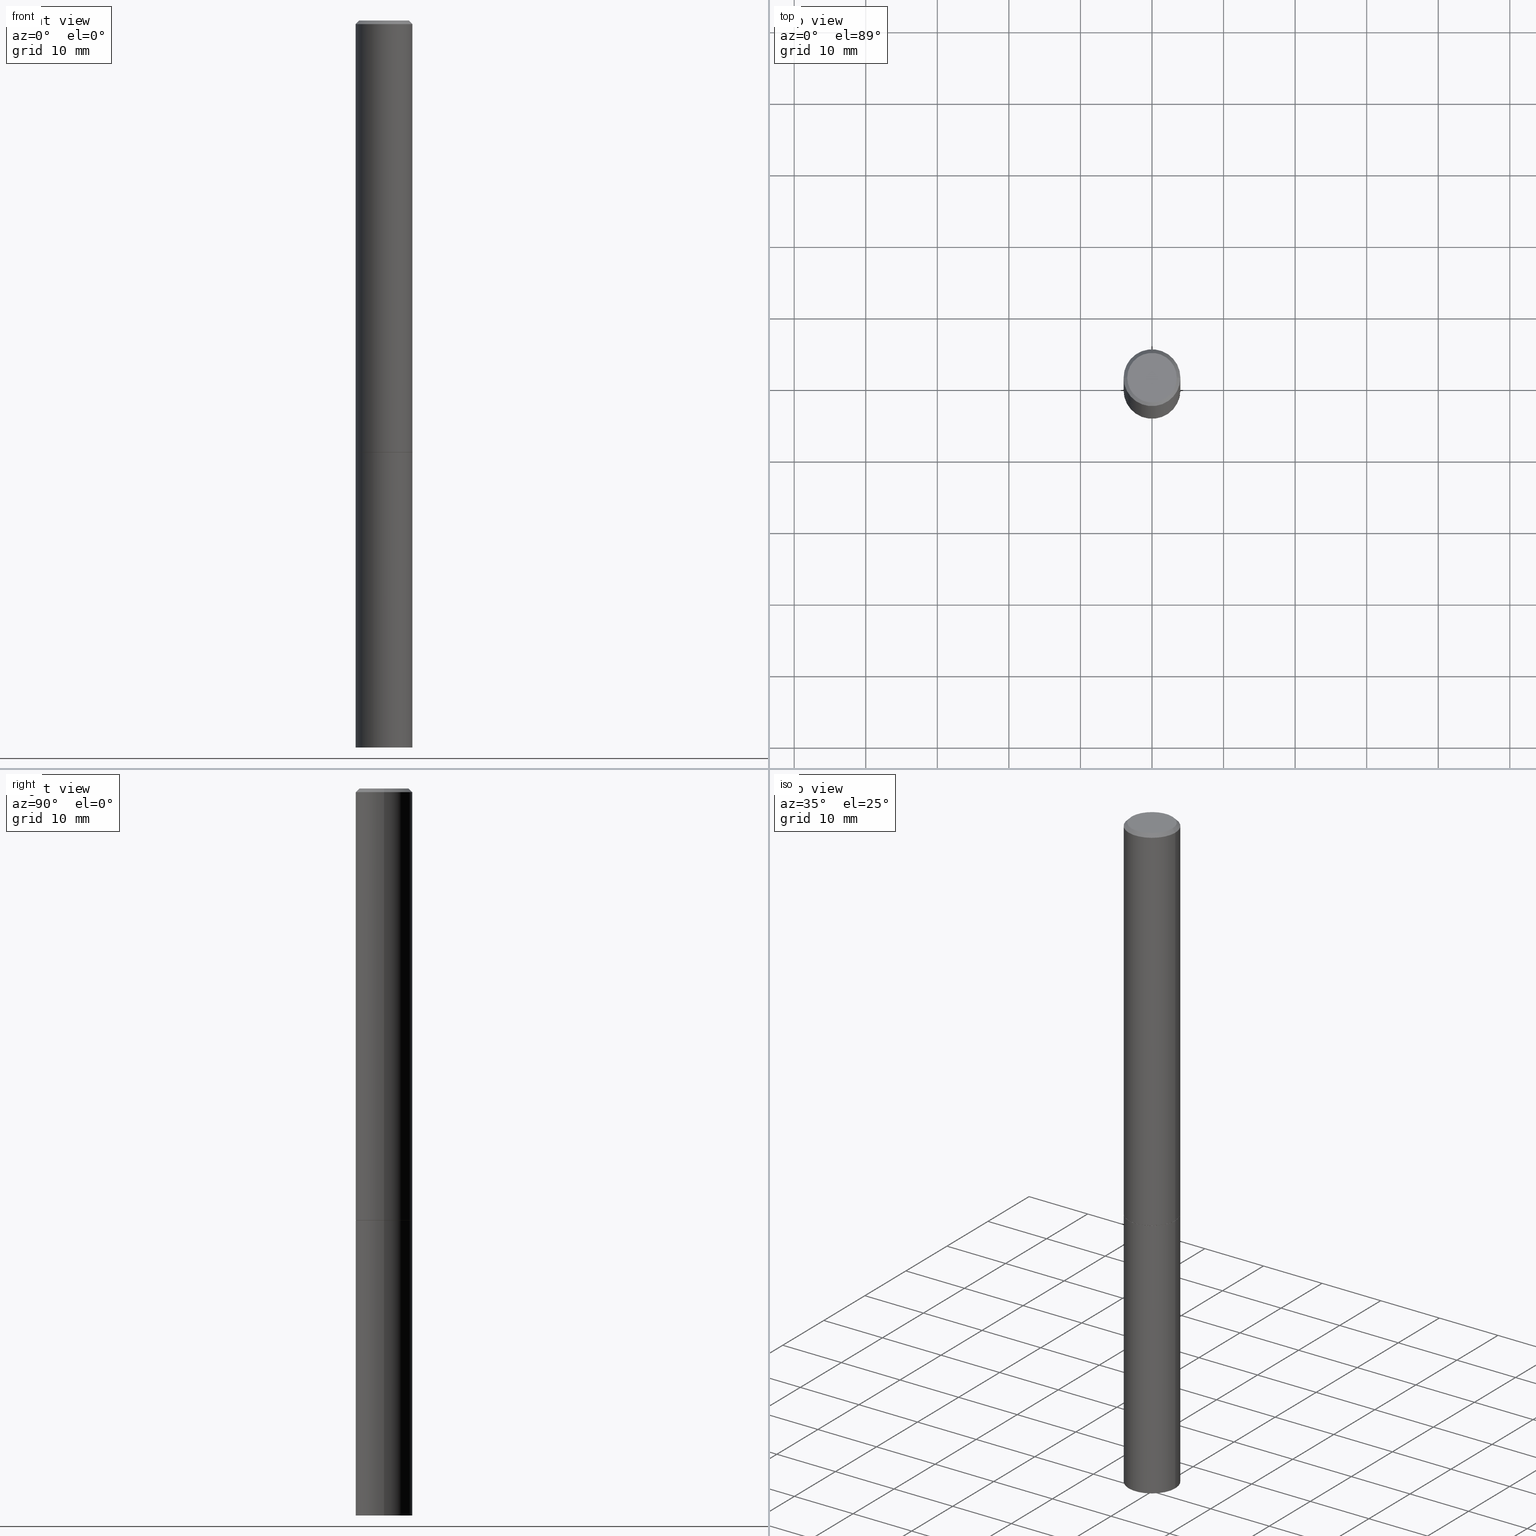
[diagram: canonical four-view strip — front | top / right | iso, engineering-drawing reading convention]
A machine part, canonical four-view strip (front | top / right | iso — engineering-drawing reading convention). The complete STEP part file that produces these views, byte-faithful:
ISO-10303-21;
HEADER;
FILE_DESCRIPTION (( 'STEP AP203' ),
    '1' );
FILE_NAME ('31873.STEP',
    '2023-03-21T20:33:45',
    ( '' ),
    ( '' ),
    'SwSTEP 2.0',
    'SolidWorks 2022',
    '' );
FILE_SCHEMA (( 'CONFIG_CONTROL_DESIGN' ));
ENDSEC;

DATA;
#1 = CALENDAR_DATE ( 2023, 21, 3 ) ;
#2 = ORIENTED_EDGE ( 'NONE', *, *, #159, .T. ) ;
#3 = PRODUCT ( '31873', '31873', '', ( #178 ) ) ;
#4 = APPROVAL ( #300, 'UNSPECIFIED' ) ;
#5 = DIRECTION ( 'NONE',  ( -2.445468806185136597E-29, 3.491481338843145583E-15, 1.000000000000000000 ) ) ;
#6 = CARTESIAN_POINT ( 'NONE',  ( 0.000000000000000000, 0.000000000000000000, 0.000000000000000000 ) ) ;
#7 = DIRECTION ( 'NONE',  ( 0.7071067811865232589, -2.468850131082003836E-15, 0.7071067811865715536 ) ) ;
#8 = DIRECTION ( 'NONE',  ( -2.445468806185136597E-29, 3.491481338843145583E-15, 1.000000000000000000 ) ) ;
#9 = DATE_AND_TIME ( #1, #291 ) ;
#10 = ADVANCED_FACE ( 'NONE', ( #248 ), #34, .T. ) ;
#11 = CLOSED_SHELL ( 'NONE', ( #122, #368, #10, #227, #57, #238, #106, #141 ) ) ;
#12 = DIRECTION ( 'NONE',  ( -2.445468806185136597E-29, 3.491481338843145583E-15, 1.000000000000000000 ) ) ;
#13 = CALENDAR_DATE ( 2023, 21, 3 ) ;
#14 =( NAMED_UNIT ( * ) SI_UNIT ( $, .STERADIAN. ) SOLID_ANGLE_UNIT ( ) );
#15 = APPROVAL_ROLE ( '' ) ;
#16 = DIRECTION ( 'NONE',  ( 1.000000000000000000, -6.982962677686266711E-15, 4.876176775795936353E-29 ) ) ;
#17 = APPLICATION_CONTEXT ( 'configuration controlled 3d designs of mechanical parts and assemblies' ) ;
#18 = AXIS2_PLACEMENT_3D ( 'NONE', #311, #191, #188 ) ;
#19 = COORDINATED_UNIVERSAL_TIME_OFFSET ( 5, 0, .BEHIND. ) ;
#20 = CYLINDRICAL_SURFACE ( 'NONE', #230, 0.1562500000000000000 ) ;
#21 = DIRECTION ( 'NONE',  ( 1.000000000000000000, -6.982962677686262766E-15, 0.000000000000000000 ) ) ;
#22 = EDGE_CURVE ( 'NONE', #262, #85, #371, .T. ) ;
#23 = LOCAL_TIME ( 16, 33, 45.00000000000000000, #74 ) ;
#24 = VERTEX_POINT ( 'NONE', #372 ) ;
#25 = APPLICATION_CONTEXT ( 'configuration controlled 3d designs of mechanical parts and assemblies' ) ;
#26 = ORIENTED_EDGE ( 'NONE', *, *, #97, .T. ) ;
#27 = CIRCLE ( 'NONE', #244, 0.1562500000000000000 ) ;
#28 = ORIENTED_EDGE ( 'NONE', *, *, #92, .F. ) ;
#29 = DATE_TIME_ROLE ( 'creation_date' ) ;
#30 = ORIENTED_EDGE ( 'NONE', *, *, #22, .T. ) ;
#31 = APPROVAL_ROLE ( '' ) ;
#32 = AXIS2_PLACEMENT_3D ( 'NONE', #104, #108, #278 ) ;
#33 = EDGE_LOOP ( 'NONE', ( #203, #119, #2, #90 ) ) ;
#34 = CONICAL_SURFACE ( 'NONE', #150, 0.1562499999999997224, 0.7853981633974472798 ) ;
#35 = LINE ( 'NONE', #331, #91 ) ;
#36 = CARTESIAN_POINT ( 'NONE',  ( -0.1562499999999998612, 1.110223024625155554E-15, -7.685836078523284153E-30 ) ) ;
#37 = LENGTH_MEASURE_WITH_UNIT ( LENGTH_MEASURE( 0.02539999999999999897 ), #222 );
#38 = DIRECTION ( 'NONE',  ( 0.000000000000000000, 0.000000000000000000, 1.000000000000000000 ) ) ;
#39 = EDGE_CURVE ( 'NONE', #55, #148, #35, .T. ) ;
#40 = CARTESIAN_POINT ( 'NONE',  ( -0.1362499999999997324, 9.863434782231830429E-16, -6.775751096333125871E-30 ) ) ;
#41 = AXIS2_PLACEMENT_3D ( 'NONE', #46, #166, #289 ) ;
#42 = AXIS2_PLACEMENT_3D ( 'NONE', #333, #253, #305 ) ;
#43 =( CONVERSION_BASED_UNIT ( 'INCH', #37 ) LENGTH_UNIT ( ) NAMED_UNIT ( #357 ) );
#44 = CARTESIAN_POINT ( 'NONE',  ( 0.1562499999999997224, -1.141782438928662935E-15, -0.02000000000000003511 ) ) ;
#45 = CARTESIAN_POINT ( 'NONE',  ( -2.914548546420694445E-19, -1.393733460796993625E-14, -3.991811284487025713 ) ) ;
#46 = CARTESIAN_POINT ( 'NONE',  ( 5.807988414689699417E-29, -8.292268179752470118E-15, -2.375000000000000000 ) ) ;
#47 = DIRECTION ( 'NONE',  ( -2.445468806185136597E-29, 3.491481338843145583E-15, 1.000000000000000000 ) ) ;
#48 = ORIENTED_EDGE ( 'NONE', *, *, #184, .F. ) ;
#49 = ADVANCED_FACE ( 'NONE', ( #183 ), #62, .F. ) ;
#50 = CONICAL_SURFACE ( 'NONE', #294, 0.1562499999999997224, 0.7853981633974472798 ) ;
#51 = ORIENTED_EDGE ( 'NONE', *, *, #260, .F. ) ;
#52 = ORIENTED_EDGE ( 'NONE', *, *, #302, .F. ) ;
#53 = CYLINDRICAL_SURFACE ( 'NONE', #288, 0.1562499999999998612 ) ;
#54 = VECTOR ( 'NONE', #290, 39.37007874015748143 ) ;
#55 = VERTEX_POINT ( 'NONE', #201 ) ;
#56 = PERSON_AND_ORGANIZATION ( #243, #381 ) ;
#57 = ADVANCED_FACE ( 'NONE', ( #265 ), #53, .T. ) ;
#58 = EDGE_LOOP ( 'NONE', ( #252, #356, #93, #355 ) ) ;
#59 = APPLICATION_PROTOCOL_DEFINITION ( 'international standard', 'config_control_design', 1994, #25 ) ;
#60 = CONICAL_SURFACE ( 'NONE', #41, 0.1552499999999999991, 0.7853981633974141952 ) ;
#61 = DIRECTION ( 'NONE',  ( -2.445468806185136877E-29, 3.491481338843145188E-15, 1.000000000000000000 ) ) ;
#62 = CONICAL_SURFACE ( 'NONE', #107, 751.2258538476485228, 1.518436449235072372 ) ;
#63 = DIRECTION ( 'NONE',  ( 0.9986295347545742773, -7.033825938272001856E-15, -0.05233595624293820026 ) ) ;
#64 = PERSON_AND_ORGANIZATION ( #243, #381 ) ;
#65 = FACE_OUTER_BOUND ( 'NONE', #328, .T. ) ;
#66 = LOCAL_TIME ( 16, 33, 45.00000000000000000, #19 ) ;
#67 = DIRECTION ( 'NONE',  ( 1.000000000000000000, -6.982962677686262766E-15, 0.000000000000000000 ) ) ;
#68 = DIRECTION ( 'NONE',  ( -2.438088387897960049E-29, 3.491481338843145188E-15, 1.000000000000000000 ) ) ;
#69 = DIRECTION ( 'NONE',  ( -2.445468806185136597E-29, 3.491481338843145583E-15, 1.000000000000000000 ) ) ;
#70 = APPROVAL_DATE_TIME ( #343, #4 ) ;
#71 = CARTESIAN_POINT ( 'NONE',  ( 9.514286648347519855E-16, 0.1362499999999997324, -4.757143324173776691E-16 ) ) ;
#72 = CARTESIAN_POINT ( 'NONE',  ( 0.1562500000000000000, -1.091087918388479174E-15, 7.619026212181150377E-30 ) ) ;
#73 = DIRECTION ( 'NONE',  ( -2.445468806185136597E-29, 3.491481338843145583E-15, 1.000000000000000000 ) ) ;
#74 = COORDINATED_UNIVERSAL_TIME_OFFSET ( 5, 0, .BEHIND. ) ;
#75 = DIRECTION ( 'NONE',  ( 2.438088387897960049E-29, -3.491481338843145188E-15, -1.000000000000000000 ) ) ;
#76 = EDGE_CURVE ( 'NONE', #295, #327, #273, .T. ) ;
#77 = CC_DESIGN_APPROVAL ( #279, ( #299 ) ) ;
#78 = DIRECTION ( 'NONE',  ( -2.445468806185136877E-29, 3.491481338843145188E-15, 1.000000000000000000 ) ) ;
#79 = SECURITY_CLASSIFICATION_LEVEL ( 'unclassified' ) ;
#80 = FACE_OUTER_BOUND ( 'NONE', #149, .T. ) ;
#81 = DIRECTION ( 'NONE',  ( -1.000000000000000000, 6.982962677686266711E-15, 0.000000000000000000 ) ) ;
#82 = LINE ( 'NONE', #199, #54 ) ;
#83 = VECTOR ( 'NONE', #78, 39.37007874015748143 ) ;
#84 = EDGE_CURVE ( 'NONE', #123, #87, #118, .T. ) ;
#85 = VERTEX_POINT ( 'NONE', #344 ) ;
#86 = VECTOR ( 'NONE', #156, 39.37007874015748854 ) ;
#87 = VERTEX_POINT ( 'NONE', #40 ) ;
#88 = ORIENTED_EDGE ( 'NONE', *, *, #270, .T. ) ;
#89 = PRODUCT_DEFINITION_FORMATION_WITH_SPECIFIED_SOURCE ( 'ANY', '', #3, .NOT_KNOWN. ) ;
#90 = ORIENTED_EDGE ( 'NONE', *, *, #341, .T. ) ;
#91 = VECTOR ( 'NONE', #61, 39.37007874015748143 ) ;
#92 = EDGE_CURVE ( 'NONE', #269, #24, #322, .T. ) ;
#93 = ORIENTED_EDGE ( 'NONE', *, *, #92, .T. ) ;
#94 = CALENDAR_DATE ( 2023, 21, 3 ) ;
#95 = ORIENTED_EDGE ( 'NONE', *, *, #146, .T. ) ;
#96 = CARTESIAN_POINT ( 'NONE',  ( 9.781875224740546387E-29, -1.396592535537258233E-14, -4.000000000000000000 ) ) ;
#97 = EDGE_CURVE ( 'NONE', #55, #262, #320, .T. ) ;
#98 = FACE_OUTER_BOUND ( 'NONE', #298, .T. ) ;
#99 = APPROVAL_STATUS ( 'not_yet_approved' ) ;
#100 = AXIS2_PLACEMENT_3D ( 'NONE', #309, #5, #125 ) ;
#101 = CARTESIAN_POINT ( 'NONE',  ( 5.805542945883513814E-29, -8.288776698413627111E-15, -2.373999999999999666 ) ) ;
#102 = DATE_AND_TIME ( #367, #383 ) ;
#103 = DIRECTION ( 'NONE',  ( -2.445468806185136597E-29, 3.491481338843145583E-15, 1.000000000000000000 ) ) ;
#104 = CARTESIAN_POINT ( 'NONE',  ( 4.890937612370281041E-31, -6.982962677686302702E-17, -0.02000000000000003511 ) ) ;
#105 = LINE ( 'NONE', #224, #200 ) ;
#106 = ADVANCED_FACE ( 'NONE', ( #65 ), #220, .F. ) ;
#107 = AXIS2_PLACEMENT_3D ( 'NONE', #274, #374, #81 ) ;
#108 = DIRECTION ( 'NONE',  ( -2.445468806185136597E-29, 3.491481338843145583E-15, 1.000000000000000000 ) ) ;
#109 = DIRECTION ( 'NONE',  ( 1.000000000000000000, -6.982962677686262766E-15, 0.000000000000000000 ) ) ;
#110 = PERSON_AND_ORGANIZATION ( #243, #381 ) ;
#111 = FACE_OUTER_BOUND ( 'NONE', #206, .T. ) ;
#112 = EDGE_CURVE ( 'NONE', #123, #269, #251, .T. ) ;
#113 = CC_DESIGN_APPROVAL ( #4, ( #89 ) ) ;
#114 = CIRCLE ( 'NONE', #385, 0.1562500000000000000 ) ;
#115 = ORIENTED_EDGE ( 'NONE', *, *, #39, .T. ) ;
#116 = VECTOR ( 'NONE', #63, 39.37007874015748854 ) ;
#117 = EDGE_LOOP ( 'NONE', ( #208, #301 ) ) ;
#118 = CIRCLE ( 'NONE', #42, 0.1362499999999997324 ) ;
#119 = ORIENTED_EDGE ( 'NONE', *, *, #319, .F. ) ;
#120 = CIRCLE ( 'NONE', #347, 0.1562500000000000000 ) ;
#121 = EDGE_LOOP ( 'NONE', ( #360, #173, #145 ) ) ;
#122 = ADVANCED_FACE ( 'NONE', ( #277 ), #215, .T. ) ;
#123 = VERTEX_POINT ( 'NONE', #158 ) ;
#124 = EDGE_LOOP ( 'NONE', ( #389, #168, #28, #387 ) ) ;
#125 = DIRECTION ( 'NONE',  ( 1.000000000000000000, -6.982962677686268288E-15, 0.000000000000000000 ) ) ;
#126 = CARTESIAN_POINT ( 'NONE',  ( 0.000000000000000000, 0.000000000000000000, 0.000000000000000000 ) ) ;
#127 = DIRECTION ( 'NONE',  ( -0.7071067811865467956, 2.468850131082249172E-15, -0.7071067811865482389 ) ) ;
#128 = CARTESIAN_POINT ( 'NONE',  ( 0.1562499999999997224, -1.503787816752438098E-14, -4.000000000000000000 ) ) ;
#129 = DIRECTION ( 'NONE',  ( 1.000000000000000000, -6.982962677686262766E-15, 0.000000000000000000 ) ) ;
#130 = MANIFOLD_SOLID_BREP ( 'Body-Move/Copy2[1]', #226 ) ;
#131 = DIRECTION ( 'NONE',  ( 1.000000000000000000, -6.982962677686262766E-15, 0.000000000000000000 ) ) ;
#132 = MANIFOLD_SOLID_BREP ( 'Body-Move/Copy2[2]', #11 ) ;
#133 = PRODUCT_DEFINITION ( 'UNKNOWN', '', #89, #187 ) ;
#134 = CARTESIAN_POINT ( 'NONE',  ( 0.000000000000000000, 0.000000000000000000, 0.000000000000000000 ) ) ;
#135 = DATE_AND_TIME ( #139, #66 ) ;
#136 = DIRECTION ( 'NONE',  ( -2.445468806185136597E-29, 3.491481338843145583E-15, 1.000000000000000000 ) ) ;
#137 = CIRCLE ( 'NONE', #308, 0.1562500000000000000 ) ;
#138 = FACE_OUTER_BOUND ( 'NONE', #33, .T. ) ;
#139 = CALENDAR_DATE ( 2023, 21, 3 ) ;
#140 = DIRECTION ( 'NONE',  ( 1.000000000000000000, -6.982962677686266711E-15, 4.876176775795936353E-29 ) ) ;
#141 = ADVANCED_FACE ( 'NONE', ( #241 ), #364, .F. ) ;
#142 = PERSON_AND_ORGANIZATION ( #243, #381 ) ;
#143 = ORIENTED_EDGE ( 'NONE', *, *, #319, .T. ) ;
#144 = AXIS2_PLACEMENT_3D ( 'NONE', #6, #8, #216 ) ;
#145 = ORIENTED_EDGE ( 'NONE', *, *, #165, .F. ) ;
#146 = EDGE_CURVE ( 'NONE', #272, #384, #105, .T. ) ;
#147 = ORIENTED_EDGE ( 'NONE', *, *, #376, .T. ) ;
#148 = VERTEX_POINT ( 'NONE', #192 ) ;
#149 = EDGE_LOOP ( 'NONE', ( #237, #362, #95, #239 ) ) ;
#150 = AXIS2_PLACEMENT_3D ( 'NONE', #214, #221, #310 ) ;
#151 = DIRECTION ( 'NONE',  ( -1.000000000000000000, 6.982962677686266711E-15, 0.000000000000000000 ) ) ;
#152 = DIRECTION ( 'NONE',  ( 1.000000000000000000, -6.982962677686265922E-15, 4.876176775795935793E-29 ) ) ;
#153 = ORIENTED_EDGE ( 'NONE', *, *, #232, .F. ) ;
#154 =( NAMED_UNIT ( * ) PLANE_ANGLE_UNIT ( ) SI_UNIT ( $, .RADIAN. ) );
#155 = APPLICATION_PROTOCOL_DEFINITION ( 'international standard', 'config_control_design', 1994, #17 ) ;
#156 = DIRECTION ( 'NONE',  ( -0.7071067811865232589, 7.493145998870265808E-15, 0.7071067811865715536 ) ) ;
#157 = DATE_AND_TIME ( #13, #23 ) ;
#158 = CARTESIAN_POINT ( 'NONE',  ( 0.1362499999999997324, -1.038262645562516152E-15, 6.957025900226682464E-30 ) ) ;
#159 = EDGE_CURVE ( 'NONE', #87, #24, #161, .T. ) ;
#160 = PERSON_AND_ORGANIZATION_ROLE ( 'classification_officer' ) ;
#161 = LINE ( 'NONE', #284, #261 ) ;
#162 = CARTESIAN_POINT ( 'NONE',  ( 1.091087918388537155E-15, 0.1562499999999917011, -2.375000000000000444 ) ) ;
#163 = CC_DESIGN_APPROVAL ( #353, ( #133 ) ) ;
#164 = AXIS2_PLACEMENT_3D ( 'NONE', #254, #69, #67 ) ;
#165 = EDGE_CURVE ( 'NONE', #262, #55, #27, .T. ) ;
#166 = DIRECTION ( 'NONE',  ( -2.445468806185136597E-29, 3.491481338843145583E-15, 1.000000000000000000 ) ) ;
#167 = VECTOR ( 'NONE', #182, 39.37007874015748143 ) ;
#168 = ORIENTED_EDGE ( 'NONE', *, *, #276, .T. ) ;
#169 = CARTESIAN_POINT ( 'NONE',  ( 4.890937612370281041E-31, -6.982962677686302702E-17, -0.02000000000000003511 ) ) ;
#170 = ADVANCED_FACE ( 'NONE', ( #111 ), #20, .T. ) ;
#171 = ORIENTED_EDGE ( 'NONE', *, *, #76, .T. ) ;
#172 = CIRCLE ( 'NONE', #259, 0.1552499999999999991 ) ;
#173 = ORIENTED_EDGE ( 'NONE', *, *, #184, .T. ) ;
#174 = EDGE_LOOP ( 'NONE', ( #143, #233 ) ) ;
#175 = AXIS2_PLACEMENT_3D ( 'NONE', #71, #370, #304 ) ;
#176 = CC_DESIGN_DATE_AND_TIME_ASSIGNMENT ( #157, #283, ( #299 ) ) ;
#177 = ORIENTED_EDGE ( 'NONE', *, *, #165, .T. ) ;
#178 = MECHANICAL_CONTEXT ( 'NONE', #25, 'mechanical' ) ;
#179 = ORIENTED_EDGE ( 'NONE', *, *, #146, .F. ) ;
#180 = AXIS2_PLACEMENT_3D ( 'NONE', #126, #219, #242 ) ;
#181 = COORDINATED_UNIVERSAL_TIME_OFFSET ( 5, 0, .BEHIND. ) ;
#182 = DIRECTION ( 'NONE',  ( 0.7071067811865467956, -7.319954787623254468E-15, -0.7071067811865482389 ) ) ;
#183 = FACE_OUTER_BOUND ( 'NONE', #121, .T. ) ;
#184 = EDGE_CURVE ( 'NONE', #209, #55, #195, .T. ) ;
#185 = CARTESIAN_POINT ( 'NONE',  ( 0.000000000000000000, 0.000000000000000000, 0.000000000000000000 ) ) ;
#186 = DIRECTION ( 'NONE',  ( -2.445468806185136597E-29, 3.491481338843145583E-15, 1.000000000000000000 ) ) ;
#187 = DESIGN_CONTEXT ( 'detailed design', #17, 'design' ) ;
#188 = DIRECTION ( 'NONE',  ( 1.000000000000000000, -6.982962677686268288E-15, 0.000000000000000000 ) ) ;
#189 = DIRECTION ( 'NONE',  ( 1.000000000000000000, -6.982962677686266711E-15, 4.876176775795936353E-29 ) ) ;
#190 = EDGE_CURVE ( 'NONE', #384, #269, #82, .T. ) ;
#191 = DIRECTION ( 'NONE',  ( -2.445468806185136597E-29, 3.491481338843145583E-15, 1.000000000000000000 ) ) ;
#192 = CARTESIAN_POINT ( 'NONE',  ( -0.1562500000000000000, -1.001887374293736968E-14, -2.375000000000000000 ) ) ;
#193 = CARTESIAN_POINT ( 'NONE',  ( 0.1562500000000000000, -9.379864616802105495E-15, -2.373999999999999666 ) ) ;
#194 = APPROVAL_STATUS ( 'not_yet_approved' ) ;
#195 = LINE ( 'NONE', #45, #296 ) ;
#196 = CARTESIAN_POINT ( 'NONE',  ( -0.1552499999999999991, -7.183852128136692972E-15, -2.375000000000000000 ) ) ;
#197 = PERSON_AND_ORGANIZATION ( #243, #381 ) ;
#198 = DIRECTION ( 'NONE',  ( -2.445468806185136597E-29, 3.491481338843145583E-15, 1.000000000000000000 ) ) ;
#199 = CARTESIAN_POINT ( 'NONE',  ( 0.1562499999999998612, -1.091087918388478187E-15, 7.619026212181143371E-30 ) ) ;
#200 = VECTOR ( 'NONE', #7, 39.37007874015748854 ) ;
#201 = CARTESIAN_POINT ( 'NONE',  ( -0.1562499999999997224, -1.287483743698410395E-14, -4.000000000000000000 ) ) ;
#202 = CC_DESIGN_PERSON_AND_ORGANIZATION_ASSIGNMENT ( #64, #303, ( #3 ) ) ;
#203 = ORIENTED_EDGE ( 'NONE', *, *, #112, .F. ) ;
#204 = ADVANCED_FACE ( 'NONE', ( #258 ), #257, .F. ) ;
#205 = APPROVAL_PERSON_ORGANIZATION ( #197, #279, #15 ) ;
#206 = EDGE_LOOP ( 'NONE', ( #177, #115, #51, #264 ) ) ;
#207 = APPROVAL_PERSON_ORGANIZATION ( #210, #353, #271 ) ;
#208 = ORIENTED_EDGE ( 'NONE', *, *, #260, .T. ) ;
#209 = VERTEX_POINT ( 'NONE', #318 ) ;
#210 = PERSON_AND_ORGANIZATION ( #243, #381 ) ;
#211 = CC_DESIGN_DATE_AND_TIME_ASSIGNMENT ( #102, #29, ( #133 ) ) ;
#212 = ORIENTED_EDGE ( 'NONE', *, *, #341, .F. ) ;
#213 = DIRECTION ( 'NONE',  ( -2.445468806185136597E-29, 3.491481338843145583E-15, 1.000000000000000000 ) ) ;
#214 = CARTESIAN_POINT ( 'NONE',  ( 4.890937612370281041E-31, -6.982962677686302702E-17, -0.02000000000000003511 ) ) ;
#215 = CONICAL_SURFACE ( 'NONE', #100, 0.1552499999999999991, 0.7853981633974141952 ) ;
#216 = DIRECTION ( 'NONE',  ( 1.000000000000000000, -6.982962677686266711E-15, 4.876176775795936353E-29 ) ) ;
#217 = DIRECTION ( 'NONE',  ( 1.000000000000000000, 0.000000000000000000, 0.000000000000000000 ) ) ;
#218 = CARTESIAN_POINT ( 'NONE',  ( 9.781875224740546387E-29, -1.396592535537258233E-14, -4.000000000000000000 ) ) ;
#219 = DIRECTION ( 'NONE',  ( -2.445468806185136597E-29, 3.491481338843145583E-15, 1.000000000000000000 ) ) ;
#220 = PLANE ( 'NONE',  #334 ) ;
#221 = DIRECTION ( 'NONE',  ( 2.445468806185136597E-29, -3.491481338843145583E-15, -1.000000000000000000 ) ) ;
#222 =( LENGTH_UNIT ( ) NAMED_UNIT ( * ) SI_UNIT ( $, .METRE. ) );
#223 = CIRCLE ( 'NONE', #32, 0.1562499999999997224 ) ;
#224 = CARTESIAN_POINT ( 'NONE',  ( 0.1552499999999999991, -9.376373135463264066E-15, -2.375000000000000000 ) ) ;
#225 = CARTESIAN_POINT ( 'NONE',  ( -0.1562500000000000000, -3.069080137970085114E-15, -2.373999999999999666 ) ) ;
#226 = CLOSED_SHELL ( 'NONE', ( #170, #313, #49, #348, #204 ) ) ;
#227 = ADVANCED_FACE ( 'NONE', ( #138 ), #50, .T. ) ;
#228 = DIRECTION ( 'NONE',  ( -2.445468806185136597E-29, 3.491481338843145583E-15, 1.000000000000000000 ) ) ;
#229 = CARTESIAN_POINT ( 'NONE',  ( 0.000000000000000000, 0.000000000000000000, 0.000000000000000000 ) ) ;
#230 = AXIS2_PLACEMENT_3D ( 'NONE', #229, #198, #140 ) ;
#231 = EDGE_CURVE ( 'NONE', #148, #85, #120, .T. ) ;
#232 = EDGE_CURVE ( 'NONE', #272, #295, #172, .T. ) ;
#233 = ORIENTED_EDGE ( 'NONE', *, *, #84, .T. ) ;
#234 = ORIENTED_EDGE ( 'NONE', *, *, #276, .F. ) ;
#235 = ORIENTED_EDGE ( 'NONE', *, *, #231, .F. ) ;
#236 = AXIS2_PLACEMENT_3D ( 'NONE', #286, #345, #151 ) ;
#237 = ORIENTED_EDGE ( 'NONE', *, *, #76, .F. ) ;
#238 = ADVANCED_FACE ( 'NONE', ( #80 ), #60, .T. ) ;
#239 = ORIENTED_EDGE ( 'NONE', *, *, #270, .F. ) ;
#240 = PERSON_AND_ORGANIZATION ( #243, #381 ) ;
#241 = FACE_OUTER_BOUND ( 'NONE', #174, .T. ) ;
#242 = DIRECTION ( 'NONE',  ( 1.000000000000000000, -6.982962677686266711E-15, 4.876176775795936353E-29 ) ) ;
#243 = PERSON ( 'UNSPECIFIED', 'UNSPECIFIED', 'UNSPECIFIED', ('UNSPECIFIED'), ('UNSPECIFIED'), ('UNSPECIFIED') ) ;
#244 = AXIS2_PLACEMENT_3D ( 'NONE', #96, #213, #21 ) ;
#245 = LINE ( 'NONE', #36, #83 ) ;
#246 = COORDINATED_UNIVERSAL_TIME_OFFSET ( 5, 0, .BEHIND. ) ;
#247 = CARTESIAN_POINT ( 'NONE',  ( 5.807988414689699417E-29, -8.292268179752470118E-15, -2.375000000000000000 ) ) ;
#248 = FACE_OUTER_BOUND ( 'NONE', #58, .T. ) ;
#249 = PRODUCT_RELATED_PRODUCT_CATEGORY ( 'detail', '', ( #3 ) ) ;
#250 = DIRECTION ( 'NONE',  ( -2.445468806185136597E-29, 3.491481338843145583E-15, 1.000000000000000000 ) ) ;
#251 = LINE ( 'NONE', #44, #167 ) ;
#252 = ORIENTED_EDGE ( 'NONE', *, *, #84, .F. ) ;
#253 = DIRECTION ( 'NONE',  ( -2.445468806185136597E-29, 3.491481338843145583E-15, 1.000000000000000000 ) ) ;
#254 = CARTESIAN_POINT ( 'NONE',  ( 5.805542945883513814E-29, -8.288776698413627111E-15, -2.373999999999999666 ) ) ;
#255 = PERSON_AND_ORGANIZATION_ROLE ( 'creator' ) ;
#256 = CC_DESIGN_PERSON_AND_ORGANIZATION_ASSIGNMENT ( #110, #312, ( #89 ) ) ;
#257 = PLANE ( 'NONE',  #377 ) ;
#258 = FACE_OUTER_BOUND ( 'NONE', #117, .T. ) ;
#259 = AXIS2_PLACEMENT_3D ( 'NONE', #316, #228, #346 ) ;
#260 = EDGE_CURVE ( 'NONE', #85, #148, #114, .T. ) ;
#261 = VECTOR ( 'NONE', #127, 39.37007874015748143 ) ;
#262 = VERTEX_POINT ( 'NONE', #128 ) ;
#263 = AXIS2_PLACEMENT_3D ( 'NONE', #218, #186, #129 ) ;
#264 = ORIENTED_EDGE ( 'NONE', *, *, #22, .F. ) ;
#265 = FACE_OUTER_BOUND ( 'NONE', #293, .T. ) ;
#266 = ORIENTED_EDGE ( 'NONE', *, *, #39, .F. ) ;
#267 = LOCAL_TIME ( 16, 33, 45.00000000000000000, #361 ) ;
#268 = APPROVAL_DATE_TIME ( #9, #353 ) ;
#269 = VERTEX_POINT ( 'NONE', #369 ) ;
#270 = EDGE_CURVE ( 'NONE', #327, #384, #137, .T. ) ;
#271 = APPROVAL_ROLE ( '' ) ;
#272 = VERTEX_POINT ( 'NONE', #315 ) ;
#273 = LINE ( 'NONE', #282, #86 ) ;
#274 = CARTESIAN_POINT ( 'NONE',  ( 1.060401494324985939E-27, -1.513972298380150215E-13, -43.36189002464450226 ) ) ;
#275 = CARTESIAN_POINT ( 'NONE',  ( 5.807988414689699417E-29, -8.292268179752470118E-15, -2.375000000000000000 ) ) ;
#276 = EDGE_CURVE ( 'NONE', #327, #24, #245, .T. ) ;
#277 = FACE_OUTER_BOUND ( 'NONE', #324, .T. ) ;
#278 = DIRECTION ( 'NONE',  ( 1.000000000000000000, -6.982962677686267499E-15, 0.000000000000000000 ) ) ;
#279 = APPROVAL ( #194, 'UNSPECIFIED' ) ;
#280 = DIRECTION ( 'NONE',  ( 1.000000000000000000, -6.982962677686267499E-15, 0.000000000000000000 ) ) ;
#281 = FACE_OUTER_BOUND ( 'NONE', #124, .T. ) ;
#282 = CARTESIAN_POINT ( 'NONE',  ( -0.1552499999999999991, -7.189150582484915374E-15, -2.375000000000000000 ) ) ;
#283 = DATE_TIME_ROLE ( 'classification_date' ) ;
#284 = CARTESIAN_POINT ( 'NONE',  ( -0.1562499999999997224, 1.021258291611614298E-15, -0.02000000000000003511 ) ) ;
#285 = CC_DESIGN_PERSON_AND_ORGANIZATION_ASSIGNMENT ( #240, #329, ( #133 ) ) ;
#286 = CARTESIAN_POINT ( 'NONE',  ( 1.060401494324985939E-27, -1.513972298380150215E-13, -43.36189002464450226 ) ) ;
#287 = DIRECTION ( 'NONE',  ( 2.445468806185136597E-29, -3.491481338843145583E-15, -1.000000000000000000 ) ) ;
#288 = AXIS2_PLACEMENT_3D ( 'NONE', #337, #136, #16 ) ;
#289 = DIRECTION ( 'NONE',  ( 1.000000000000000000, -6.982962677686268288E-15, 0.000000000000000000 ) ) ;
#290 = DIRECTION ( 'NONE',  ( -2.445468806185136877E-29, 3.491481338843145188E-15, 1.000000000000000000 ) ) ;
#291 = LOCAL_TIME ( 16, 33, 45.00000000000000000, #181 ) ;
#292 = CC_DESIGN_PERSON_AND_ORGANIZATION_ASSIGNMENT ( #378, #160, ( #299 ) ) ;
#293 = EDGE_LOOP ( 'NONE', ( #234, #88, #326, #212 ) ) ;
#294 = AXIS2_PLACEMENT_3D ( 'NONE', #169, #287, #375 ) ;
#295 = VERTEX_POINT ( 'NONE', #196 ) ;
#296 = VECTOR ( 'NONE', #350, 39.37007874015748854 ) ;
#297 = ORIENTED_EDGE ( 'NONE', *, *, #232, .T. ) ;
#298 = EDGE_LOOP ( 'NONE', ( #48, #147, #358 ) ) ;
#299 = SECURITY_CLASSIFICATION ( '', '', #79 ) ;
#300 = APPROVAL_STATUS ( 'not_yet_approved' ) ;
#301 = ORIENTED_EDGE ( 'NONE', *, *, #231, .T. ) ;
#302 = EDGE_CURVE ( 'NONE', #384, #327, #354, .T. ) ;
#303 = PERSON_AND_ORGANIZATION_ROLE ( 'design_owner' ) ;
#304 = DIRECTION ( 'NONE',  ( -1.000000000000000000, 6.982962677686265922E-15, -4.876176775795935793E-29 ) ) ;
#305 = DIRECTION ( 'NONE',  ( 1.000000000000000000, -6.982962677686266711E-15, 4.876176775795936353E-29 ) ) ;
#306 = CONICAL_SURFACE ( 'NONE', #236, 751.2258538476485228, 1.518436449235072372 ) ;
#307 = CYLINDRICAL_SURFACE ( 'NONE', #180, 0.1562499999999998612 ) ;
#308 = AXIS2_PLACEMENT_3D ( 'NONE', #101, #250, #340 ) ;
#309 = CARTESIAN_POINT ( 'NONE',  ( 5.807988414689699417E-29, -8.292268179752470118E-15, -2.375000000000000000 ) ) ;
#310 = DIRECTION ( 'NONE',  ( -1.000000000000000000, 6.982962677686267499E-15, 0.000000000000000000 ) ) ;
#311 = CARTESIAN_POINT ( 'NONE',  ( 5.807988414689699417E-29, -8.292268179752470118E-15, -2.375000000000000000 ) ) ;
#312 = PERSON_AND_ORGANIZATION_ROLE ( 'design_supplier' ) ;
#313 = ADVANCED_FACE ( 'NONE', ( #98 ), #306, .F. ) ;
#314 = DIRECTION ( 'NONE',  ( -2.445468806185136877E-29, 3.491481338843145188E-15, 1.000000000000000000 ) ) ;
#315 = CARTESIAN_POINT ( 'NONE',  ( 0.1552499999999999991, -9.376373135463264066E-15, -2.375000000000000000 ) ) ;
#316 = CARTESIAN_POINT ( 'NONE',  ( 5.807988414689699417E-29, -8.292268179752470118E-15, -2.375000000000000000 ) ) ;
#317 = SHAPE_DEFINITION_REPRESENTATION ( #330, #335 ) ;
#318 = CARTESIAN_POINT ( 'NONE',  ( 9.762053498228131430E-29, -1.393704315311519671E-14, -3.991811284487025713 ) ) ;
#319 = EDGE_CURVE ( 'NONE', #87, #123, #352, .T. ) ;
#320 = CIRCLE ( 'NONE', #263, 0.1562500000000000000 ) ;
#321 = DIRECTION ( 'NONE',  ( -1.000000000000000000, 6.982962677686265922E-15, -4.876176775795935793E-29 ) ) ;
#322 = CIRCLE ( 'NONE', #351, 0.1562499999999997224 ) ;
#323 = CC_DESIGN_PERSON_AND_ORGANIZATION_ASSIGNMENT ( #142, #255, ( #89 ) ) ;
#324 = EDGE_LOOP ( 'NONE', ( #297, #171, #52, #179 ) ) ;
#325 = AXIS2_PLACEMENT_3D ( 'NONE', #185, #38, #217 ) ;
#326 = ORIENTED_EDGE ( 'NONE', *, *, #190, .T. ) ;
#327 = VERTEX_POINT ( 'NONE', #225 ) ;
#328 = EDGE_LOOP ( 'NONE', ( #153, #359 ) ) ;
#329 = PERSON_AND_ORGANIZATION_ROLE ( 'creator' ) ;
#330 = PRODUCT_DEFINITION_SHAPE ( 'NONE', 'NONE',  #133 ) ;
#331 = CARTESIAN_POINT ( 'NONE',  ( -0.1562500000000000000, 1.110223024625156540E-15, -7.685836078523291160E-30 ) ) ;
#332 =( GEOMETRIC_REPRESENTATION_CONTEXT ( 3 ) GLOBAL_UNCERTAINTY_ASSIGNED_CONTEXT ( ( #363 ) ) GLOBAL_UNIT_ASSIGNED_CONTEXT ( ( #43, #154, #14 ) ) REPRESENTATION_CONTEXT ( 'NONE', 'WORKASPACE' ) );
#333 = CARTESIAN_POINT ( 'NONE',  ( 0.000000000000000000, 0.000000000000000000, 0.000000000000000000 ) ) ;
#334 = AXIS2_PLACEMENT_3D ( 'NONE', #247, #68, #152 ) ;
#335 = ADVANCED_BREP_SHAPE_REPRESENTATION ( '31873', ( #130, #132, #325 ), #332 ) ;
#336 = CARTESIAN_POINT ( 'NONE',  ( 2.914548548373064519E-19, -1.393733460796993625E-14, -3.991811284487025713 ) ) ;
#337 = CARTESIAN_POINT ( 'NONE',  ( 0.000000000000000000, 0.000000000000000000, 0.000000000000000000 ) ) ;
#338 = CARTESIAN_POINT ( 'NONE',  ( 4.890937612370281041E-31, -6.982962677686302702E-17, -0.02000000000000003511 ) ) ;
#339 = CIRCLE ( 'NONE', #18, 0.1552499999999999991 ) ;
#340 = DIRECTION ( 'NONE',  ( 1.000000000000000000, -6.982962677686262766E-15, 0.000000000000000000 ) ) ;
#341 = EDGE_CURVE ( 'NONE', #24, #269, #223, .T. ) ;
#342 = CYLINDRICAL_SURFACE ( 'NONE', #349, 0.1562500000000000000 ) ;
#343 = DATE_AND_TIME ( #94, #267 ) ;
#344 = CARTESIAN_POINT ( 'NONE',  ( 0.1562500000000000000, -9.383356098140948502E-15, -2.375000000000000000 ) ) ;
#345 = DIRECTION ( 'NONE',  ( 2.445468806185136597E-29, -3.491481338843145583E-15, -1.000000000000000000 ) ) ;
#346 = DIRECTION ( 'NONE',  ( 1.000000000000000000, -6.982962677686268288E-15, 0.000000000000000000 ) ) ;
#347 = AXIS2_PLACEMENT_3D ( 'NONE', #379, #47, #109 ) ;
#348 = ADVANCED_FACE ( 'NONE', ( #366 ), #342, .T. ) ;
#349 = AXIS2_PLACEMENT_3D ( 'NONE', #134, #73, #189 ) ;
#350 = DIRECTION ( 'NONE',  ( -0.9986295347545742773, 6.790662755453662155E-15, -0.05233595624293820026 ) ) ;
#351 = AXIS2_PLACEMENT_3D ( 'NONE', #338, #103, #280 ) ;
#352 = CIRCLE ( 'NONE', #144, 0.1362499999999997324 ) ;
#353 = APPROVAL ( #99, 'UNSPECIFIED' ) ;
#354 = CIRCLE ( 'NONE', #164, 0.1562500000000000000 ) ;
#355 = ORIENTED_EDGE ( 'NONE', *, *, #159, .F. ) ;
#356 = ORIENTED_EDGE ( 'NONE', *, *, #112, .T. ) ;
#357 = DIMENSIONAL_EXPONENTS ( 1.000000000000000000, 0.000000000000000000, 0.000000000000000000, 0.000000000000000000, 0.000000000000000000, 0.000000000000000000, 0.000000000000000000 ) ;
#358 = ORIENTED_EDGE ( 'NONE', *, *, #97, .F. ) ;
#359 = ORIENTED_EDGE ( 'NONE', *, *, #386, .F. ) ;
#360 = ORIENTED_EDGE ( 'NONE', *, *, #376, .F. ) ;
#361 = COORDINATED_UNIVERSAL_TIME_OFFSET ( 5, 0, .BEHIND. ) ;
#362 = ORIENTED_EDGE ( 'NONE', *, *, #386, .T. ) ;
#363 = UNCERTAINTY_MEASURE_WITH_UNIT (LENGTH_MEASURE( 1.000000000000000082E-05 ), #43, 'distance_accuracy_value', 'NONE');
#364 = PLANE ( 'NONE',  #175 ) ;
#365 = LINE ( 'NONE', #336, #116 ) ;
#366 = FACE_OUTER_BOUND ( 'NONE', #390, .T. ) ;
#367 = CALENDAR_DATE ( 2023, 21, 3 ) ;
#368 = ADVANCED_FACE ( 'NONE', ( #281 ), #307, .T. ) ;
#369 = CARTESIAN_POINT ( 'NONE',  ( 0.1562499999999997224, -1.141782438928662935E-15, -0.02000000000000003511 ) ) ;
#370 = DIRECTION ( 'NONE',  ( 2.438088387897960049E-29, -3.491481338843145188E-15, -1.000000000000000000 ) ) ;
#371 = LINE ( 'NONE', #72, #382 ) ;
#372 = CARTESIAN_POINT ( 'NONE',  ( -0.1562499999999997224, 1.021258291611614298E-15, -0.02000000000000003511 ) ) ;
#373 = APPROVAL_DATE_TIME ( #135, #279 ) ;
#374 = DIRECTION ( 'NONE',  ( 2.445468806185136597E-29, -3.491481338843145583E-15, -1.000000000000000000 ) ) ;
#375 = DIRECTION ( 'NONE',  ( -1.000000000000000000, 6.982962677686267499E-15, 0.000000000000000000 ) ) ;
#376 = EDGE_CURVE ( 'NONE', #209, #262, #365, .T. ) ;
#377 = AXIS2_PLACEMENT_3D ( 'NONE', #162, #75, #321 ) ;
#378 = PERSON_AND_ORGANIZATION ( #243, #381 ) ;
#379 = CARTESIAN_POINT ( 'NONE',  ( 5.807988414689699417E-29, -8.292268179752470118E-15, -2.375000000000000000 ) ) ;
#380 = APPROVAL_PERSON_ORGANIZATION ( #56, #4, #31 ) ;
#381 = ORGANIZATION ( 'UNSPECIFIED', 'UNSPECIFIED', '' ) ;
#382 = VECTOR ( 'NONE', #314, 39.37007874015748143 ) ;
#383 = LOCAL_TIME ( 16, 33, 45.00000000000000000, #246 ) ;
#384 = VERTEX_POINT ( 'NONE', #193 ) ;
#385 = AXIS2_PLACEMENT_3D ( 'NONE', #275, #12, #131 ) ;
#386 = EDGE_CURVE ( 'NONE', #295, #272, #339, .T. ) ;
#387 = ORIENTED_EDGE ( 'NONE', *, *, #190, .F. ) ;
#388 = CC_DESIGN_SECURITY_CLASSIFICATION ( #299, ( #89 ) ) ;
#389 = ORIENTED_EDGE ( 'NONE', *, *, #302, .T. ) ;
#390 = EDGE_LOOP ( 'NONE', ( #266, #26, #30, #235 ) ) ;
ENDSEC;
END-ISO-10303-21;
